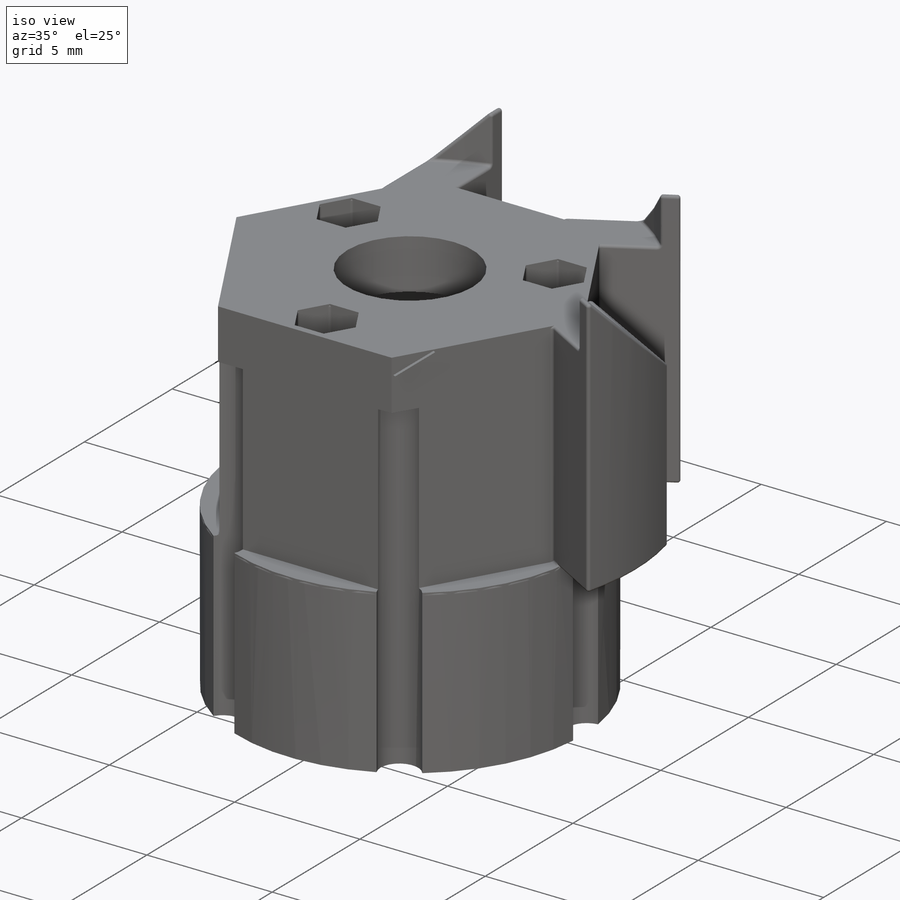
[diagram: iso view]
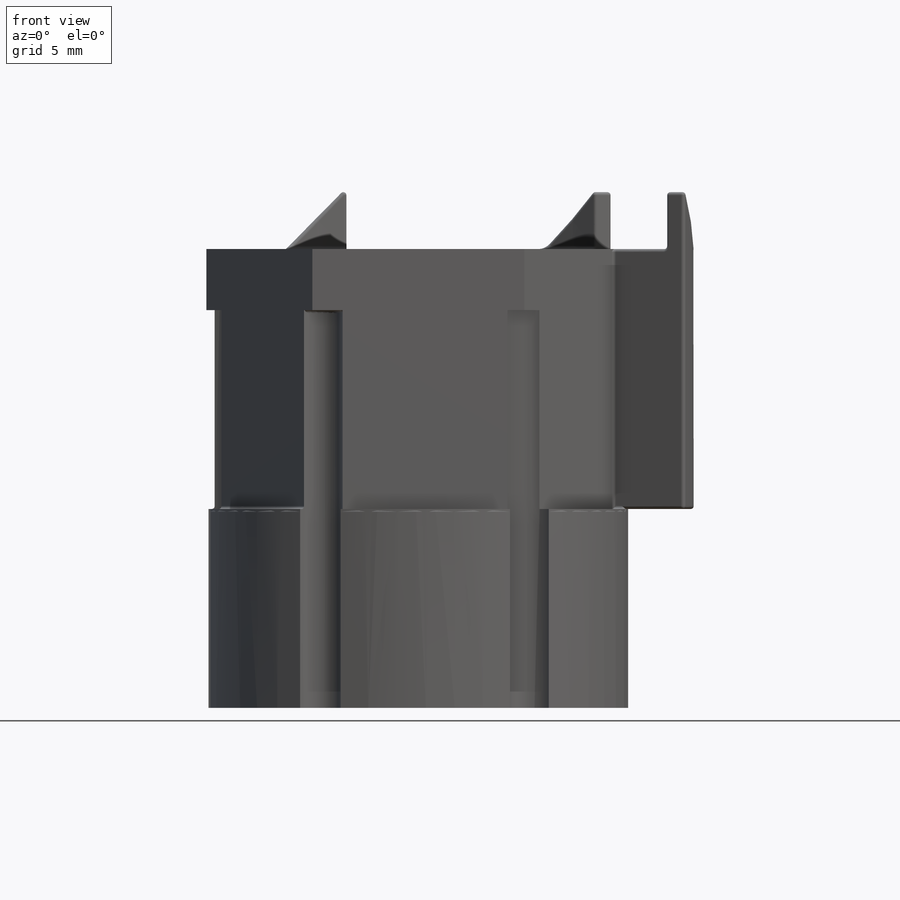
[diagram: front view]
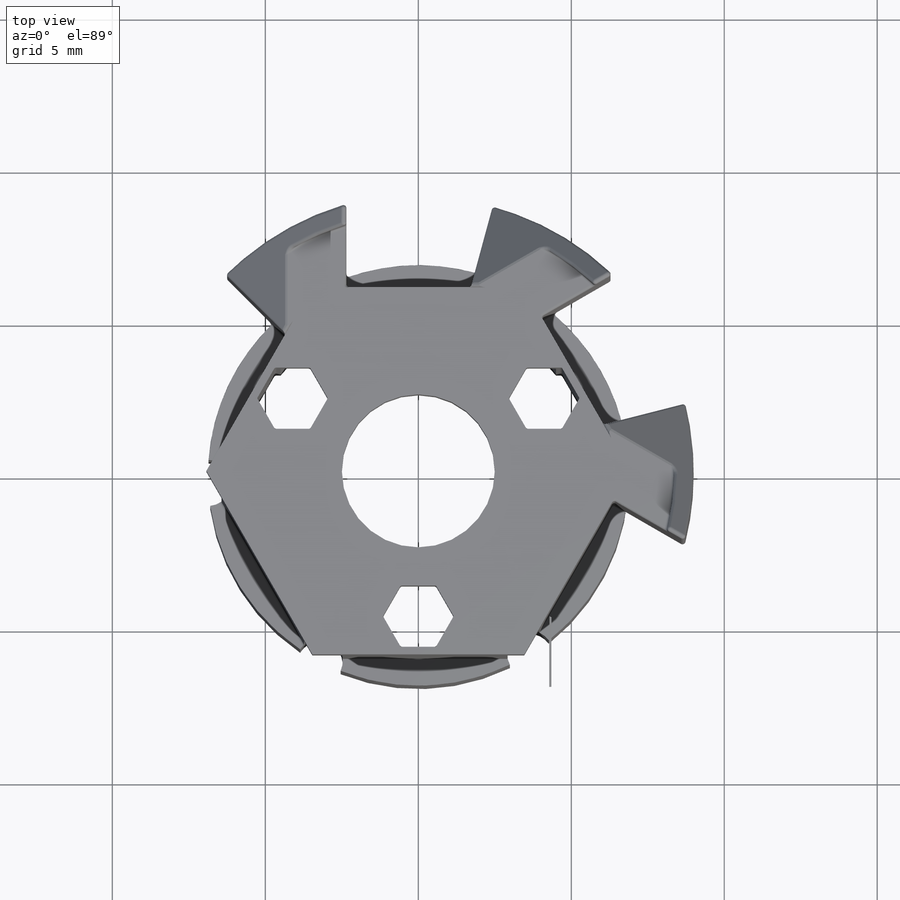
[diagram: top view]
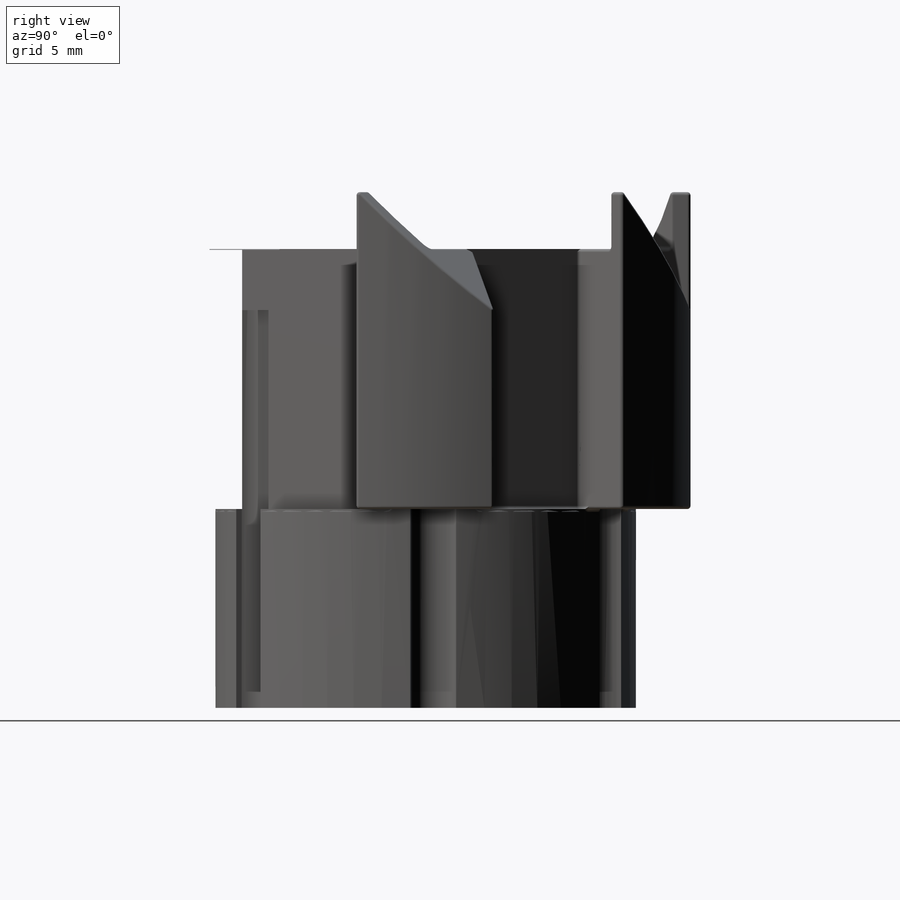
[diagram: right view]
SOLIDWORKS PART (.sldprt)
format: sldprt  version: not decoded by parser v0  size: 4,785,152 bytes
history: native  units: mm
features: fillet x79, sketch x12, cut_extrude x8, extrude x3, material x1, boolean_combine x1, pattern_circular x1 (+11 scaffold rows collapsed)
feature tree (116):
  scaffold x11  (default folders/planes/origin — collapsed)
  material  "Material <not specified>"
  sketch  "Sketch1"  dims[D1=13.75mm]
  extrude  "Boss-Extrude1"  Depth=6.5mm
  sketch  "Sketch2"  dims[D1=12.0mm D2=0.0mm]
  extrude  "Boss-Extrude2"  Depth=8.5mm
  sketch  "Sketch3"  dims[c1.D1=18.0mm c1.D2=2.5mm c1.D3=~2.746634mm c2.D3=45.0deg c2.D4=1.75mm]
  extrude  "Boss-Extrude3"  Depth=2mm
  sketch  "Sketch5"  dims[D1=4.0mm]
  cut_extrude  "Cut-Extrude6"  Depth=10mm
  boolean_combine  "Combine1"
  pattern_circular  "CirPattern10"  Count=6 Angle=360deg
  sketch  "Sketch7"  dims[c1.D1=2.0mm c1.D2=2.0mm c1.D3=2.0mm c1.D10=5.0mm c1.D4=0.25mm c1.D5=0.25mm c1.D6=0.25mm c1.D7=0.25mm c1.D8=0.25mm c1.D9=0.25mm c2.D5=~7.711755mm c3.D5=120.0deg c3.D7=~5.915068mm c4.D7=120.0deg c4.D8=0.0mm c4.D11=~0.554806mm]
  cut_extrude  "Cut-Extrude7"  Depth=3mm
  sketch  "Sketch8"  dims[D1=11.25mm D2=1.5mm D3=1.5mm D4=1.5mm D5=1.5mm D6=1.5mm D7=1.5mm]
  cut_extrude  "Cut-Extrude8"  Depth=13mm
  fillet  "Fillet1"  Radius=0.1mm
  fillet  "Fillet2"  Radius=0.1mm
  fillet  "Fillet3"  Radius=0.1mm
  fillet  "Fillet4"  Radius=0.1mm
  fillet  "Fillet5"  Radius=0.1mm
  fillet  "Fillet6"  Radius=0.1mm
  fillet  "Fillet7"  Radius=0.1mm
  fillet  "Fillet8"  Radius=0.1mm
  fillet  "Fillet9"  Radius=0.1mm
  fillet  "Fillet10"  Radius=0.1mm
  fillet  "Fillet11"  Radius=0.1mm
  fillet  "Fillet12"  Radius=0.1mm
  fillet  "Fillet13"  Radius=0.1mm
  fillet  "Fillet14"  Radius=0.1mm
  fillet  "Fillet15"  Radius=0.1mm
  fillet  "Fillet16"  Radius=0.1mm
  fillet  "Fillet17"  Radius=0.1mm
  fillet  "Fillet18"  Radius=0.1mm
  fillet  "Fillet19"  Radius=0.1mm
  fillet  "Fillet20"  Radius=0.1mm
  fillet  "Fillet21"  Radius=0.1mm
  fillet  "Fillet22"  Radius=0.1mm
  fillet  "Fillet23"  Radius=0.1mm
  fillet  "Fillet24"  Radius=0.1mm
  fillet  "Fillet25"  Radius=0.1mm
  fillet  "Fillet27"  Radius=0.1mm
  fillet  "Fillet28"  Radius=0.1mm
  fillet  "Fillet29"  Radius=0.1mm
  fillet  "Fillet30"  Radius=0.1mm
  fillet  "Fillet31"  Radius=0.1mm
  fillet  "Fillet32"  Radius=0.1mm
  fillet  "Fillet33"  Radius=0.1mm
  fillet  "Fillet34"  Radius=0.1mm
  fillet  "Fillet35"  Radius=0.1mm
  fillet  "Fillet36"  Radius=0.1mm
  fillet  "Fillet37"  Radius=0.1mm
  fillet  "Fillet38"  Radius=0.1mm
  sketch  "Sketch9"  dims[D1=0.0mm D2=14.5mm]
  cut_extrude  "Cut-Extrude9"  Depth=10mm
  fillet  "Fillet39"  Radius=0.1mm
  fillet  "Fillet40"  Radius=0.1mm
  fillet  "Fillet41"  Radius=0.1mm
  fillet  "Fillet42"  Radius=0.1mm
  fillet  "Fillet43"  Radius=0.1mm
  fillet  "Fillet44"  Radius=0.1mm
  fillet  "Fillet45"  Radius=0.1mm
  fillet  "Fillet46"  Radius=0.1mm
  fillet  "Fillet47"  Radius=0.1mm
  fillet  "Fillet48"  Radius=0.1mm
  fillet  "Fillet49"  Radius=0.1mm
  fillet  "Fillet50"  Radius=0.1mm
  fillet  "Fillet51"  Radius=0.1mm
  fillet  "Fillet52"  Radius=0.1mm
  fillet  "Fillet53"  Radius=0.1mm
  fillet  "Fillet54"  Radius=0.1mm
  fillet  "Fillet55"  Radius=0.1mm
  fillet  "Fillet56"  Radius=0.1mm
  fillet  "Fillet57"  Radius=0.1mm
  sketch  "Sketch10"  dims[D1=~16.717595mm]
  cut_extrude  "Cut-Extrude10"  Depth=10mm
  sketch  "Sketch12"  dims[D1=0.0mm]
  cut_extrude  "Cut-Extrude11"  Depth=15mm
  sketch  "Sketch13"  dims[D1=0.0mm]
  cut_extrude  "Cut-Extrude12"  Depth=15mm
  sketch  "Sketch14"  dims[D1=0.0mm]
  cut_extrude  "Cut-Extrude13"  Depth=15mm
  fillet  "Fillet58"  Radius=0.1mm
  fillet  "Fillet59"  Radius=0.1mm
  fillet  "Fillet60"  Radius=0.1mm
  fillet  "Fillet61"  Radius=0.1mm
  fillet  "Fillet62"  Radius=0.1mm
  fillet  "Fillet63"  Radius=0.1mm
  fillet  "Fillet64"  Radius=0.1mm
  fillet  "Fillet65"  Radius=0.1mm
  fillet  "Fillet66"  Radius=0.1mm
  fillet  "Fillet67"  Radius=0.1mm
  fillet  "Fillet68"  Radius=0.1mm
  fillet  "Fillet69"  Radius=0.1mm
  fillet  "Fillet70"  Radius=0.1mm
  fillet  "Fillet76"  Radius=0.1mm
  fillet  "Fillet77"  Radius=0.1mm
  fillet  "Fillet78"  Radius=0.1mm
  fillet  "Fillet79"  Radius=0.1mm
  fillet  "Fillet80"  Radius=0.1mm
  fillet  "Fillet81"  Radius=0.1mm
  fillet  "Fillet82"  Radius=0.1mm
  fillet  "Fillet83"  Radius=0.1mm
  fillet  "Fillet84"  Radius=0.1mm
  fillet  "Fillet85"  Radius=0.1mm
  sketch  "Sketch15"  dims[c1.D1=~2.552082mm c1.D3=2.0mm c2.D1=1.0mm c2.D2=1.0mm]
decode coverage: 103 of 104 modeling features carry decoded parameters
note: ~ marks probable driven/reference dimensions
note: suppression state not decoded; provenance and decode notes live in map.json
